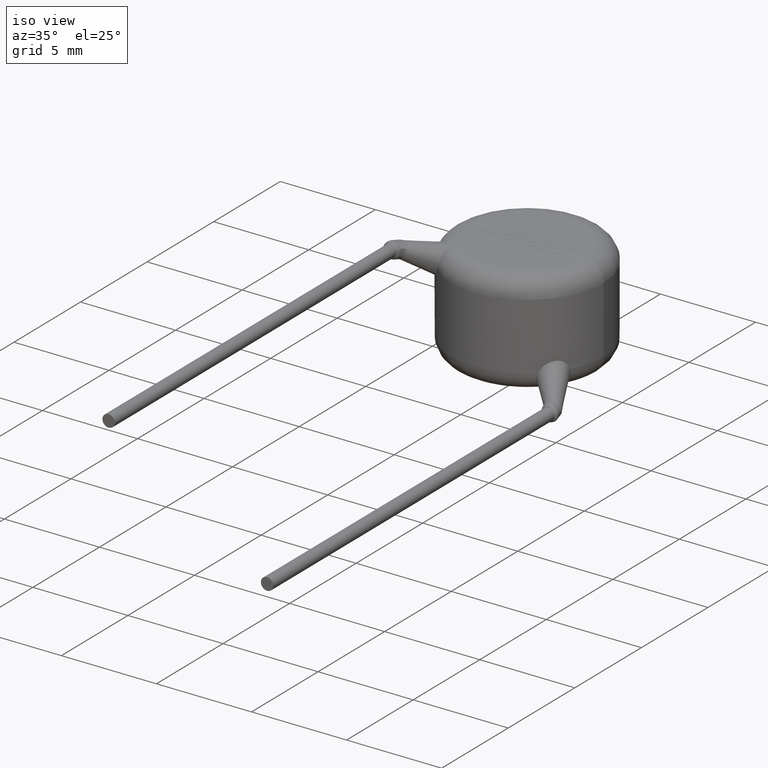
[diagram: clean part render]
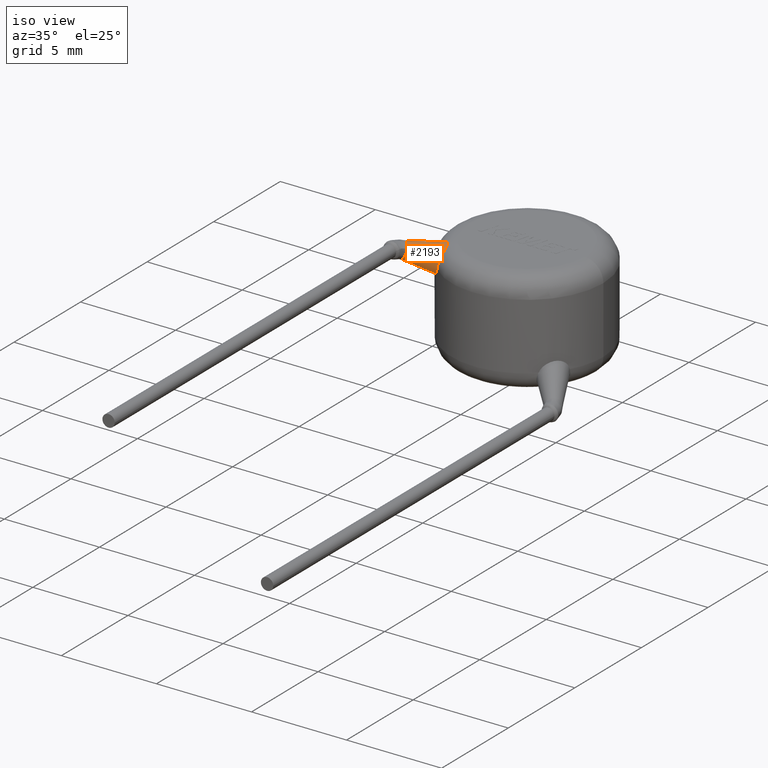
[diagram: same view with one face highlighted and labeled with its STEP entity id]
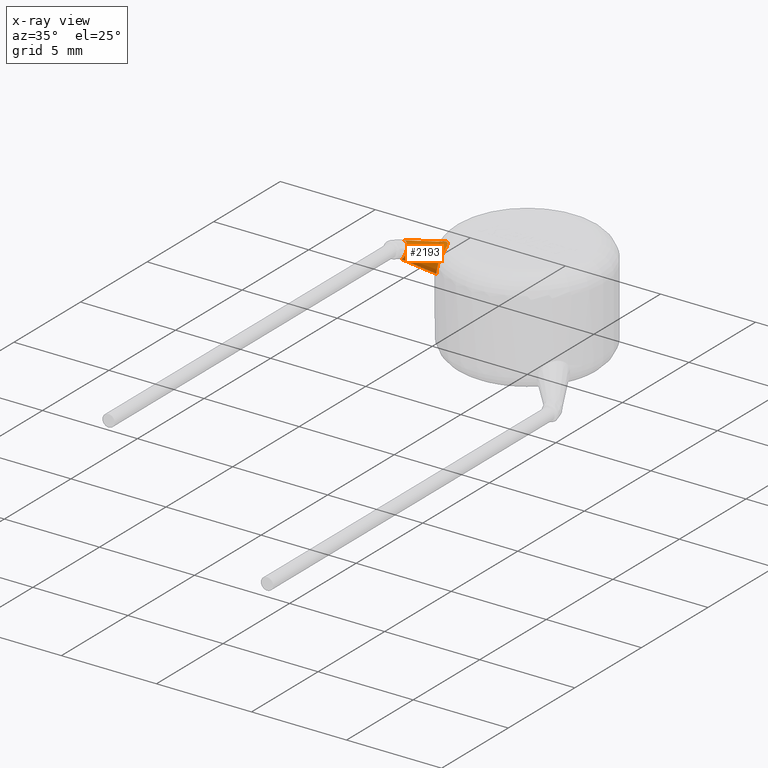
[diagram: x-ray of the same camera — body ghosted, the highlighted face saturated]
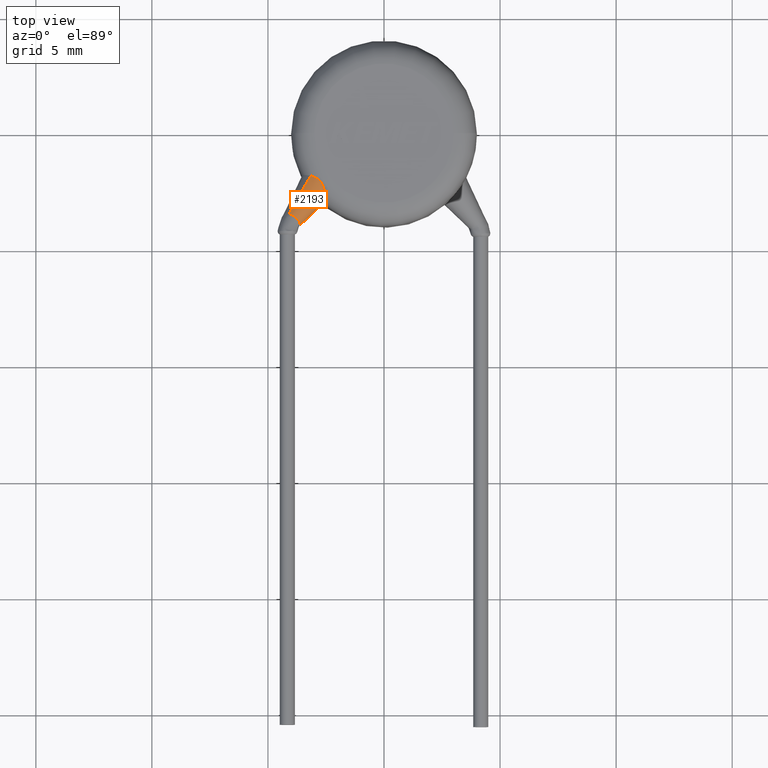
[diagram: same view with one face highlighted and labeled with its STEP entity id]
A machine part, iso view. The second image highlights one B-rep face of the part: STEP entity #2193.
The next image is the same camera in x-ray: the body ghosted, the highlighted face saturated — about 0% of this face is hidden behind the body in this view.
A second angle (top view) of the same face is appended — the face is thin or edge-on in the first view.
In plain terms, the highlighted conical surface has half-angle 10 deg.
Its self-contained STEP definition (entity closure, byte-faithful):
#56 = EDGE_CURVE ( 'NONE', #112, #1705, #3117, .T. ) ;
#77 = EDGE_CURVE ( 'NONE', #2221, #3199, #3467, .T. ) ;
#82 = CARTESIAN_POINT ( 'NONE',  ( -3.162224118056931900, -1.836874344096239600, 5.253876309380070000 ) ) ;
#94 = ORIENTED_EDGE ( 'NONE', *, *, #3443, .F. ) ;
#112 = VERTEX_POINT ( 'NONE', #3770 ) ;
#152 = CARTESIAN_POINT ( 'NONE',  ( -2.538189415538354000, -2.814128744439079500, 5.118013228598499600 ) ) ;
#221 = ORIENTED_EDGE ( 'NONE', *, *, #77, .F. ) ;
#399 = EDGE_CURVE ( 'NONE', #1859, #3199, #3251, .T. ) ;
#401 = CARTESIAN_POINT ( 'NONE',  ( -4.096938694136362400, -3.468199367785211400, 5.693519283975677000 ) ) ;
#422 = CARTESIAN_POINT ( 'NONE',  ( -3.092482271814885700, -1.853973434416182200, 5.298948709720800600 ) ) ;
#460 = CARTESIAN_POINT ( 'NONE',  ( -2.561754453703698700, -2.962153468923946200, 4.909236968080912300 ) ) ;
#475 = CARTESIAN_POINT ( 'NONE',  ( -2.576707623573569500, -2.991316871427882600, 4.829402390849030400 ) ) ;
#650 = CARTESIAN_POINT ( 'NONE',  ( -3.828904327343256600, -3.967265205462927400, 5.059807308484657500 ) ) ;
#709 = DIRECTION ( 'NONE',  ( -0.5471636869634998200, -0.7543776640110354500, 0.3626654652841412300 ) ) ;
#720 = EDGE_CURVE ( 'NONE', #4077, #1859, #1173, .T. ) ;
#823 = DIRECTION ( 'NONE',  ( -0.5471636869634998200, -0.7543776640110354500, 0.3626654652841412300 ) ) ;
#1058 = DIRECTION ( 'NONE',  ( 0.3153345491683886600, -0.5871362796208934300, -0.7455435005777364400 ) ) ;
#1135 = CARTESIAN_POINT ( 'NONE',  ( -2.661119846902723300, -2.986375924163002300, 4.500000000000000000 ) ) ;
#1173 = LINE ( 'NONE', #3024, #3470 ) ;
#1186 = CARTESIAN_POINT ( 'NONE',  ( -3.962921510739809200, -3.717732286624069600, 5.376663296230167300 ) ) ;
#1231 = CARTESIAN_POINT ( 'NONE',  ( -2.800140089070654700, -2.856434049926478600, 4.216464619313583700 ) ) ;
#1324 = CARTESIAN_POINT ( 'NONE',  ( -4.096938694136362400, -3.468199367785211900, 5.693519283975677000 ) ) ;
#1359 = CARTESIAN_POINT ( 'NONE',  ( -2.800140089070654700, -2.856434049926478600, 4.216464619313583700 ) ) ;
#1374 = CARTESIAN_POINT ( 'NONE',  ( -2.694352707210374100, -2.138962284379395400, 5.398446525483759500 ) ) ;
#1465 = CARTESIAN_POINT ( 'NONE',  ( -2.637221253058527700, -3.007671643123754500, 4.580003683574780400 ) ) ;
#1549 = CARTESIAN_POINT ( 'NONE',  ( -2.693173538190379600, -2.957813306388758200, 4.392696056014779400 ) ) ;
#1640 = ORIENTED_EDGE ( 'NONE', *, *, #2071, .F. ) ;
#1680 = AXIS2_PLACEMENT_3D ( 'NONE', #1727, #709, #1058 ) ;
#1705 = VERTEX_POINT ( 'NONE', #401 ) ;
#1727 = CARTESIAN_POINT ( 'NONE',  ( -3.962921510739809200, -3.717732286624069600, 5.376663296230167300 ) ) ;
#1734 = FACE_OUTER_BOUND ( 'NONE', #2891, .T. ) ;
#1778 = CARTESIAN_POINT ( 'NONE',  ( -2.540981272700057600, -2.681035010941152500, 5.223928645666321200 ) ) ;
#1850 = LINE ( 'NONE', #1324, #2418 ) ;
#1859 = VERTEX_POINT ( 'NONE', #1359 ) ;
#1874 = CONICAL_SURFACE ( 'NONE', #2485, 0.4249999999999624100, 0.1745329251994329800 ) ;
#2071 = EDGE_CURVE ( 'NONE', #4077, #112, #3156, .T. ) ;
#2076 = CARTESIAN_POINT ( 'NONE',  ( -2.547697225812567600, -2.607464569805905400, 5.266318754041539500 ) ) ;
#2193 = ADVANCED_FACE ( 'NONE', ( #1734 ), #1874, .T. ) ;
#2221 = VERTEX_POINT ( 'NONE', #2929 ) ;
#2276 = DIRECTION ( 'NONE',  ( 0.3153345491683886600, -0.5871362796208934300, -0.7455435005777364400 ) ) ;
#2418 = VECTOR ( 'NONE', #4277, 1000.000000000000100 ) ;
#2447 = CARTESIAN_POINT ( 'NONE',  ( -2.542391158002622400, -2.873072879703232100, 5.054369498515621100 ) ) ;
#2485 = AXIS2_PLACEMENT_3D ( 'NONE', #2532, #3530, #2276 ) ;
#2532 = CARTESIAN_POINT ( 'NONE',  ( -3.962921510739809200, -3.717732286624069600, 5.376663296230167300 ) ) ;
#2782 = CARTESIAN_POINT ( 'NONE',  ( -2.574327942199500000, -2.452296705181594900, 5.333872572690665900 ) ) ;
#2891 = EDGE_LOOP ( 'NONE', ( #94, #3436, #1640, #3029, #3147, #221 ) ) ;
#2929 = CARTESIAN_POINT ( 'NONE',  ( -3.162224118056931900, -1.836874344096239600, 5.253876309380070000 ) ) ;
#3010 = CARTESIAN_POINT ( 'NONE',  ( -3.016765086983975500, -1.879486405504424000, 5.334041009881411300 ) ) ;
#3024 = CARTESIAN_POINT ( 'NONE',  ( -3.828904327343256100, -3.967265205462927400, 5.059807308484657500 ) ) ;
#3025 = CARTESIAN_POINT ( 'NONE',  ( -2.653173253932092000, -2.216115758858614900, 5.390584754883578400 ) ) ;
#3029 = ORIENTED_EDGE ( 'NONE', *, *, #720, .T. ) ;
#3117 = CIRCLE ( 'NONE', #1680, 0.4249999999999624100 ) ;
#3147 = ORIENTED_EDGE ( 'NONE', *, *, #399, .T. ) ;
#3156 = CIRCLE ( 'NONE', #4153, 0.4249999999999624100 ) ;
#3199 = VERTEX_POINT ( 'NONE', #3885 ) ;
#3251 = B_SPLINE_CURVE_WITH_KNOTS ( 'NONE', 3,
 ( #1231, #3508, #1549, #3784 ),
 .UNSPECIFIED., .F., .F.,
 ( 4, 4 ),
 ( 0.001543874426713961700, 0.001886465727452908400 ),
 .UNSPECIFIED. ) ;
#3337 = CARTESIAN_POINT ( 'NONE',  ( -2.872596583143951100, -1.955982530786966300, 5.381427703573850300 ) ) ;
#3351 = DIRECTION ( 'NONE',  ( 0.5936083109069130200, 0.6409618272189968600, -0.4866180322083496500 ) ) ;
#3436 = ORIENTED_EDGE ( 'NONE', *, *, #56, .F. ) ;
#3443 = EDGE_CURVE ( 'NONE', #1705, #2221, #1850, .T. ) ;
#3467 = B_SPLINE_CURVE_WITH_KNOTS ( 'NONE', 3,
 ( #82, #422, #3010, #3337, #3975, #1374, #3025, #3688, #2782, #2076, #1778, #152, #2447, #460, #475, #3754, #1465, #1135 ),
 .UNSPECIFIED., .F., .F.,
 ( 4, 2, 2, 2, 2, 2, 2, 2, 4 ),
 ( 0.0008894788880759931400, 0.001143719430447219400, 0.001397959972818445400, 0.001652200515189671200, 0.001906441057560897300, 0.002160681599932123300, 0.002414922142303349600, 0.002669162684674575800, 0.002923403227045801200 ),
 .UNSPECIFIED. ) ;
#3470 = VECTOR ( 'NONE', #3351, 1000.000000000000100 ) ;
#3508 = CARTESIAN_POINT ( 'NONE',  ( -2.741600205074298500, -2.913820243033916800, 4.295893805490502300 ) ) ;
#3530 = DIRECTION ( 'NONE',  ( 0.5471636869634997100, 0.7543776640110356800, -0.3626654652841410100 ) ) ;
#3688 = CARTESIAN_POINT ( 'NONE',  ( -2.593561578498728300, -2.373308934042988900, 5.358039741270768100 ) ) ;
#3754 = CARTESIAN_POINT ( 'NONE',  ( -2.614861514199252800, -3.014198611165184200, 4.663045469229076400 ) ) ;
#3770 = CARTESIAN_POINT ( 'NONE',  ( -3.619565588990730100, -3.871865109369803100, 5.574083619277823600 ) ) ;
#3784 = CARTESIAN_POINT ( 'NONE',  ( -2.661119846902723300, -2.986375924163002300, 4.500000000000000000 ) ) ;
#3794 = DIRECTION ( 'NONE',  ( 0.3153345491683886600, -0.5871362796208934300, -0.7455435005777364400 ) ) ;
#3885 = CARTESIAN_POINT ( 'NONE',  ( -2.661119846902723300, -2.986375924163002300, 4.500000000000000000 ) ) ;
#3975 = CARTESIAN_POINT ( 'NONE',  ( -2.803738152114986900, -2.008725799784722500, 5.394046512036430500 ) ) ;
#4077 = VERTEX_POINT ( 'NONE', #650 ) ;
#4153 = AXIS2_PLACEMENT_3D ( 'NONE', #1186, #823, #3794 ) ;
#4277 = DIRECTION ( 'NONE',  ( 0.4840937712698855600, 0.8448721172156158400, -0.2276934917148539200 ) ) ;